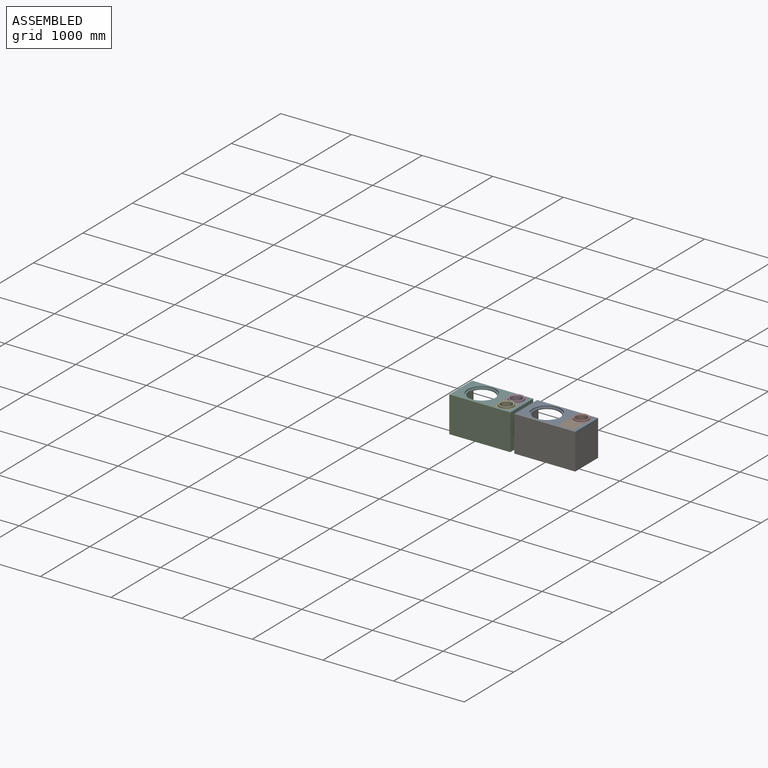
[diagram: assembled view]
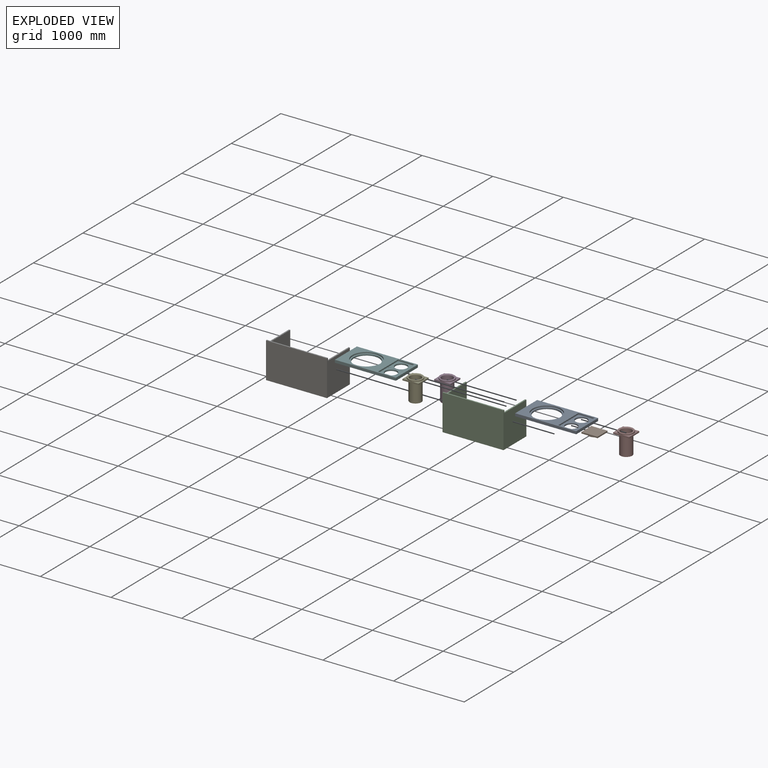
[diagram: exploded view]
GUIDED TOUR — MATED ASSEMBLY (Onshape document ca6fc2cbfa9176d6d9f847e1, AutoMate assembly ca6fc2cbfa9176d6d9f847e1_8db6cc4c12fea4a9a2d24865_8ce9ad16e19f948892ecff8c_default)

This assembly has 8 components, labeled P0..P7 below (a component is one placed occurrence of a part; the same part can appear more than once), held together by 6 mates. A mate is a constraint between two components; its type names the relative motion it leaves free:
  FASTENED — locks the two components together rigidly (no relative motion).
Axis/direction vectors are unit vectors and 'through' points are millimeter coordinates, both in the assembly's world frame.

MATES
  1. FASTENED "Fastened 3": P7 <-> P0, direction (1.000, 0.000, 0.000) through (1313.51, 307.35, 65.31) mm
  2. FASTENED "Fastened 4": P1 <-> P0, direction (-1.000, 0.000, 0.000) through (1313.51, -99.05, 65.31) mm
  3. FASTENED "Fastened 6": P2 <-> P5, direction (1.000, 0.000, 0.000) through (111.64, -114.30, 84.30) mm
  4. FASTENED "Fastened 5": P0 <-> P6, direction (1.000, 0.000, 0.000) through (1034.11, -118.10, 84.36) mm
  5. FASTENED "Fastened 1": P3 <-> P5, direction (1.000, 0.000, 0.000) through (391.04, 311.15, 65.25) mm
  6. FASTENED "Fastened 2": P4 <-> P5, direction (1.000, 0.000, 0.000) through (391.04, -95.25, 65.25) mm

ASSEMBLY ORDER
  1. P0 — the base component [order heuristic]
  2. P7 — core [order heuristic]
  3. P1 [order verified]
  4. P3 — core [order heuristic]
  5. P4 — core [order heuristic]
  6. P6 [order verified]
  7. P2 [order verified]
  8. P5 — core [order heuristic]
(P2, P6 verified with a relaxed clearance tolerance: the source model stores slight part interference there.)
Order-tag legend:
  [order verified] — this step's position reverses a verified removal order: the component was checked to insert without passing through the ones already placed.
  [order heuristic] — the first 5 components form the assembly's core: parts whose collision-free extraction could not be verified, listed in mate-graph order.

Of the 8 components, 3 carry the full construction recipe — the FeatureScript program that regenerates the part's solid from scratch; the rest are supplied as boundary geometry only.
Each toured component is shown spotlighted twice — in the assembled view, then in the exploded view, where a leader line traces a displaced component back to its assembled socket (saturated green if recipe-attached, orange if geometry-only; every other component desaturated gray) — followed by its recipe or geometry summary and the mates that hold it.
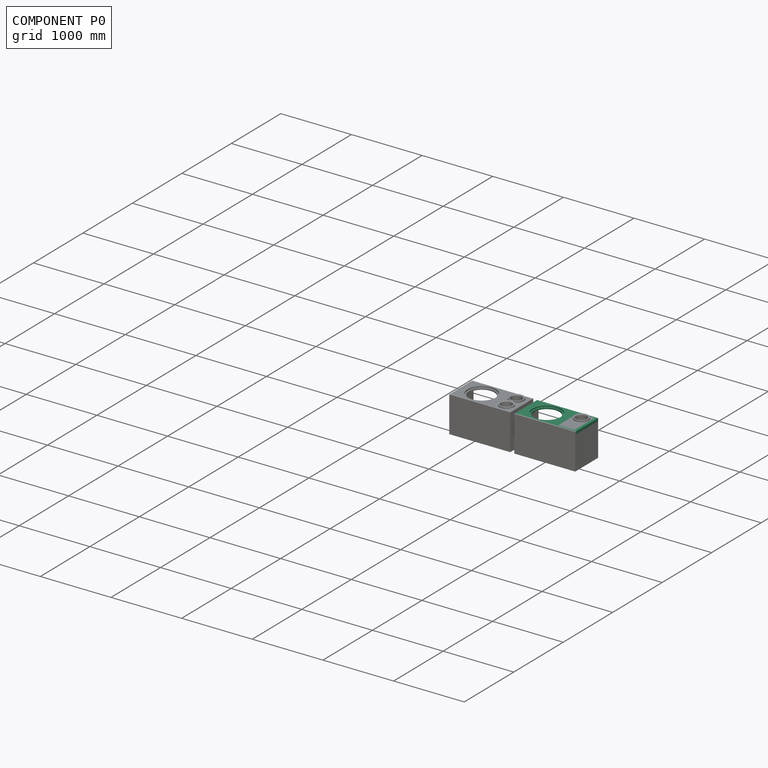
[diagram: component P0 — assembled]
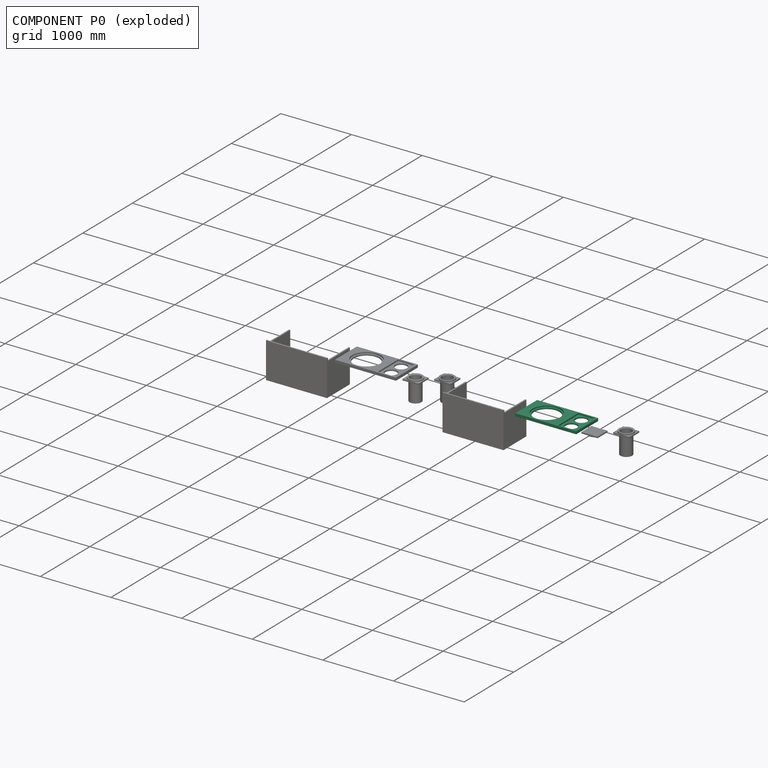
[diagram: component P0 — exploded]
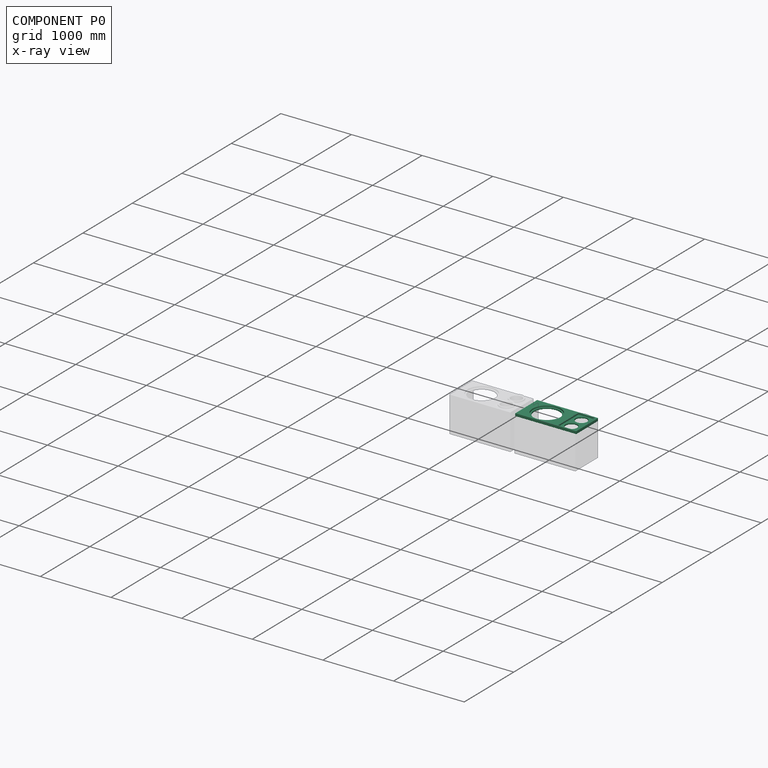
[diagram: component P0 — x-ray view]
COMPONENT P0 — recipe-attached (CADFS 00119937, mesh-verified: the recipe's output STEP matches this component's geometry to below the mesh-comparison resolution (tessellation chordal tolerance ~1.46 mm)).
Held by: FASTENED mate "Fastened 3" to P7; FASTENED mate "Fastened 4" to P1; FASTENED mate "Fastened 5" to P6.
Construction recipe (FeatureScript — the CAD program that rebuilds this solid; sketch coordinates are in the units given by the * unit suffixes, e.g. mm):

FeatureScript 1511;
import(path : "onshape/std/geometry.fs", version : "1511.0");
import(path : "onshape/std/common.fs", version : "1511.0");
const mm = millimeter;
const VERTEX = EntityType.VERTEX;
const EDGE = EntityType.EDGE;
const FACE = EntityType.FACE;
const BODY = EntityType.BODY;
function v(x, y){return vector(x, y);}
function OD(order){return orderDisambiguation(order);}
function OSD(set){return originalSetDisambiguation(set);}
function TD(topology){return topologyDisambiguation(topology);}
function TDD(query){return trueDependencyDisambiguation(query);}
function sQuery(a, b, c) {return sketchEntityQuery(a, b, c);}

annotation { "Feature Type Name" : "Feature", "Feature Type Description" : "" }
export const myFeature = defineFeature(function(context is Context, id is Id, definition is map)
    precondition{}
    {
        {
            var Q0;
            Q0=qCreatedBy(makeId("Top.planeOp"),FACE);
            var sketch = newSketch(context, id + "F0", { "sketchPlane" : qUnion([Q0])});
            skLineSegment(sketch, "E0.bottom", {"start": v(0, 0) * mm, "end": v(863.6, 0) * mm});
            skLineSegment(sketch, "E0.top", {"start": v(0, 444.5) * mm, "end": v(863.6, 444.5) * mm});
            skLineSegment(sketch, "E0.left", {"start": v(0, 0) * mm, "end": v(0, 444.5) * mm});
            skLineSegment(sketch, "E0.right", {"start": v(863.6, 0) * mm, "end": v(863.6, 444.5) * mm});
            skLineSegment(sketch, "E1.bottom", {"start": v(596.9, 19.05) * mm, "end": v(825.5, 19.05) * mm});
            skLineSegment(sketch, "E1.top", {"start": v(596.9, 425.45) * mm, "end": v(825.5, 425.45) * mm});
            skLineSegment(sketch, "E1.left", {"start": v(596.9, 19.05) * mm, "end": v(596.9, 425.45) * mm});
            skLineSegment(sketch, "E1.right", {"start": v(825.5, 19.05) * mm, "end": v(825.5, 425.45) * mm});
            skCircle(sketch, "E2", {"center": v(711.2, 323.85) * mm, "radius": 82.55 * mm});
            skCircle(sketch, "E3", {"center": v(711.2, 120.65) * mm, "radius": 82.55 * mm});
            skCircle(sketch, "E4", {"center": v(292.1, 222.25) * mm, "radius": 179.39 * mm});
            skCircle(sketch, "E5", {"center": v(292.1, 222.25) * mm, "radius": 200.03 * mm});
            skCircle(sketch, "E6", {"center": v(609.6, 412.75) * mm, "radius": 3.18 * mm});
            skCircle(sketch, "E7", {"center": v(812.8, 412.75) * mm, "radius": 3.18 * mm});
            skCircle(sketch, "E8", {"center": v(609.6, 234.95) * mm, "radius": 3.18 * mm});
            skCircle(sketch, "E9", {"center": v(609.6, 209.55) * mm, "radius": 3.18 * mm});
            skCircle(sketch, "E10", {"center": v(609.6, 31.75) * mm, "radius": 3.18 * mm});
            skCircle(sketch, "E11", {"center": v(812.8, 31.75) * mm, "radius": 3.18 * mm});
            skCircle(sketch, "E12", {"center": v(812.8, 234.95) * mm, "radius": 3.18 * mm});
            skCircle(sketch, "E13", {"center": v(812.8, 209.55) * mm, "radius": 3.18 * mm});
            skSolve(sketch);
        }
        {
            var Q0;
            Q0=makeQuery(id+"F0.imprint","IMPRINT",FACE,{"disambiguationData":[TD([[makeQuery(id+"F0.imprint","IMPRINT",EDGE,{"derivedFrom":sQuery(id+"F0.wireOp",EDGE,"E0.bottom")}),1.0]])]});
            extrude(context, id + "F1", {"entities" : qUnion([Q0]), "depth" : 38.1 * mm});
        }
        {
            var Q0;
            Q0=makeQuery(id+"F0.imprint","IMPRINT",FACE,{"disambiguationData":[TD([[makeQuery(id+"F0.imprint","IMPRINT",EDGE,{"derivedFrom":sQuery(id+"F0.wireOp",EDGE,"E4")}),-1.0]])]});
            var Q1;
            Q1=makeQuery(id+"F0.imprint","IMPRINT",FACE,{"disambiguationData":[TD([[makeQuery(id+"F0.imprint","IMPRINT",EDGE,{"derivedFrom":sQuery(id+"F0.wireOp",EDGE,"E1.bottom")}),1.0]])]});
            extrude(context, id + "F2", {"entities" : qUnion([Q0, Q1]), "operationType" : NewBodyOperationType.ADD, "depth" : 19.05 * mm});
        }
    });
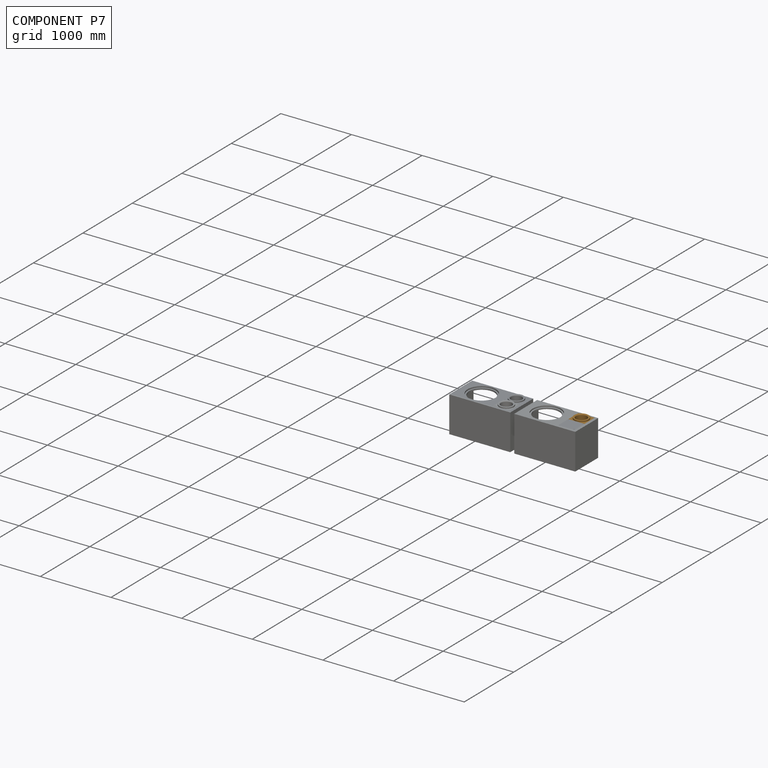
[diagram: component P7 — assembled]
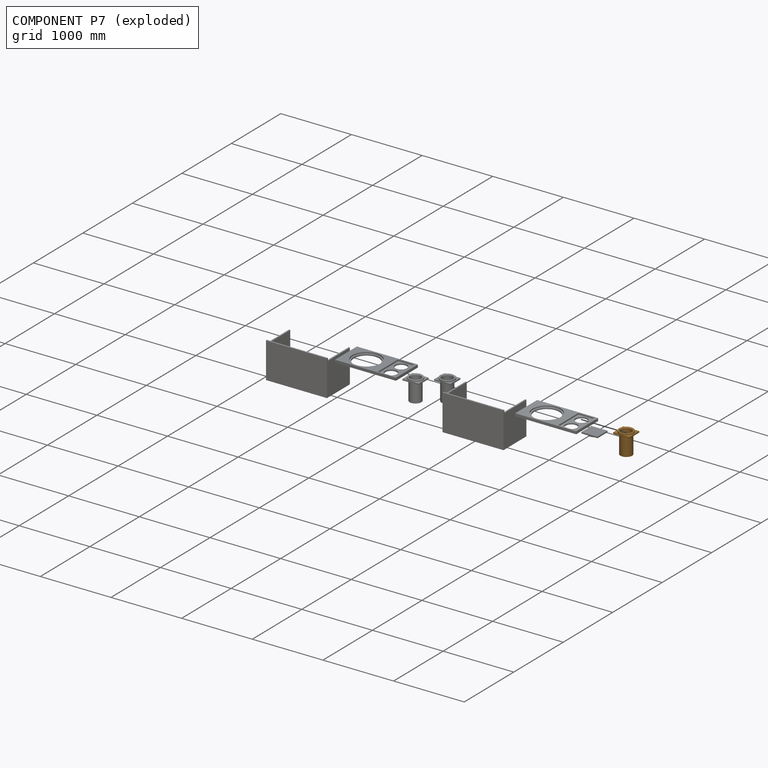
[diagram: component P7 — exploded]
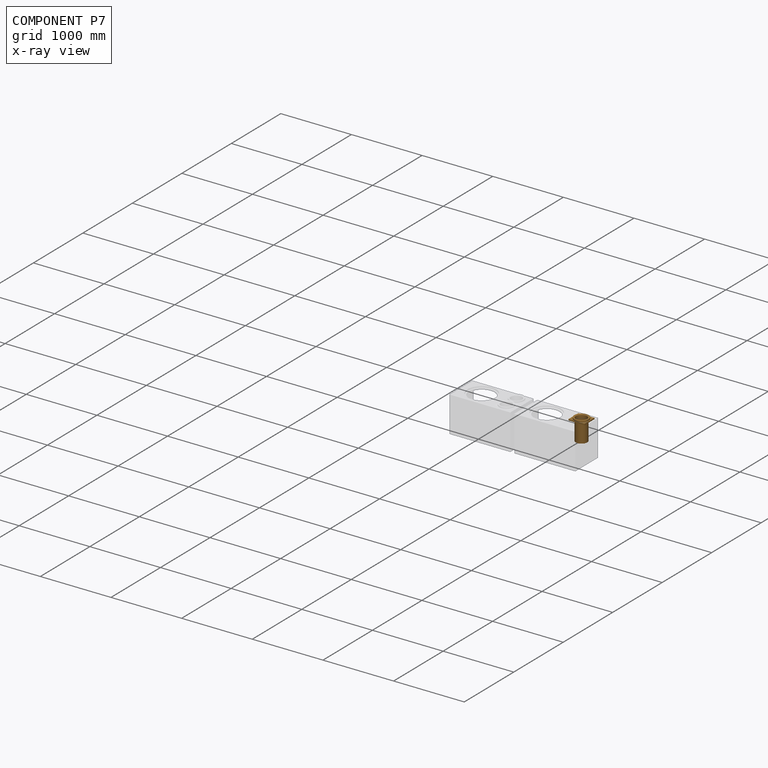
[diagram: component P7 — x-ray view]
COMPONENT P7 — geometry summary (no construction recipe available for this part):
  bounding box: 304.8 x 228.6 x 219.9 mm
  B-rep topology: 1 solid, 18 faces, 82 edges
  volume: 1631324 mm^3 (11% of its bounding box)
  symmetry: 2-fold rotationally symmetric about the z axis; mirror-symmetric across its x mid-plane, y mid-plane
Held by: FASTENED mate "Fastened 3" to P0.
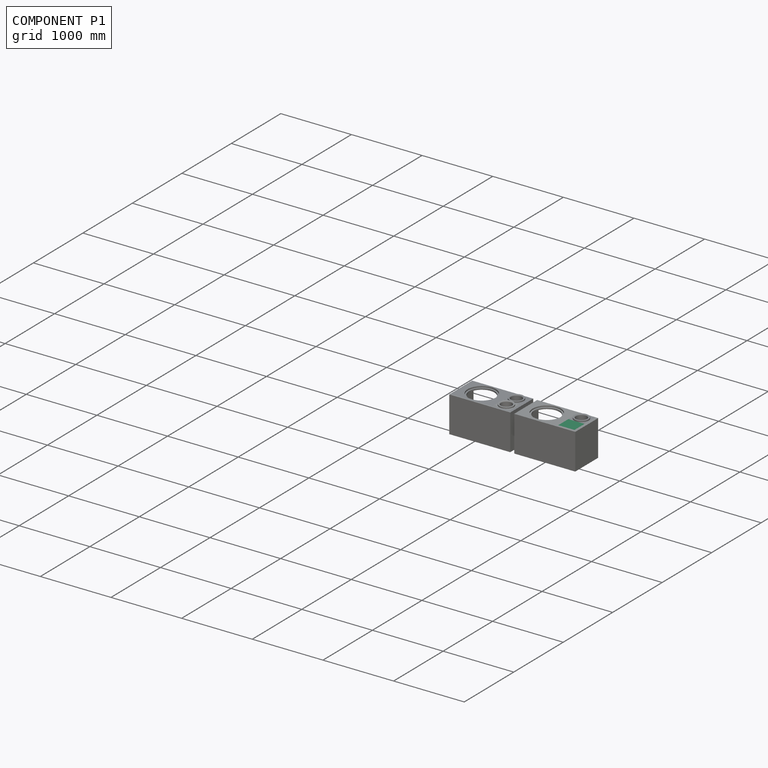
[diagram: component P1 — assembled]
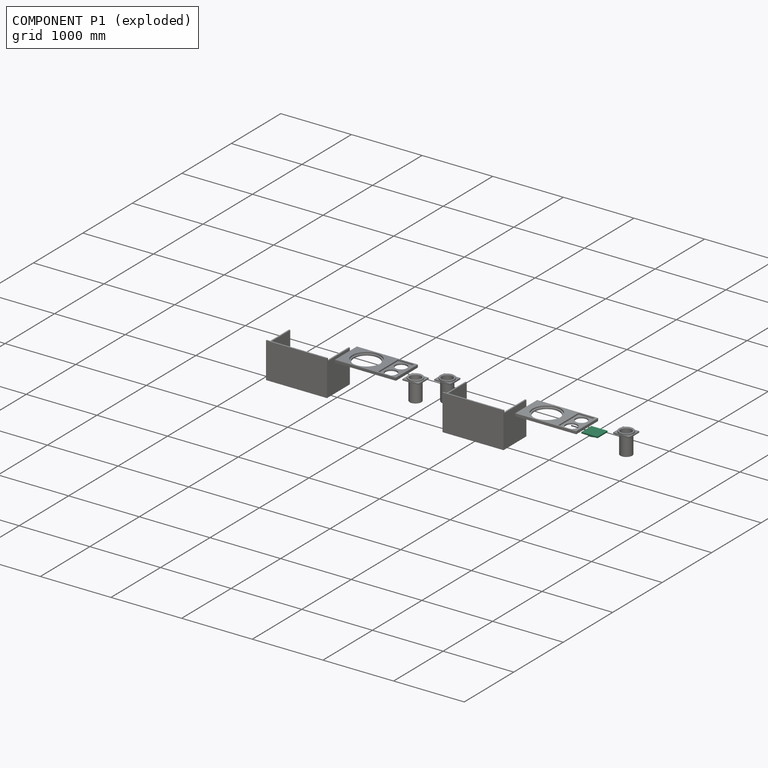
[diagram: component P1 — exploded]
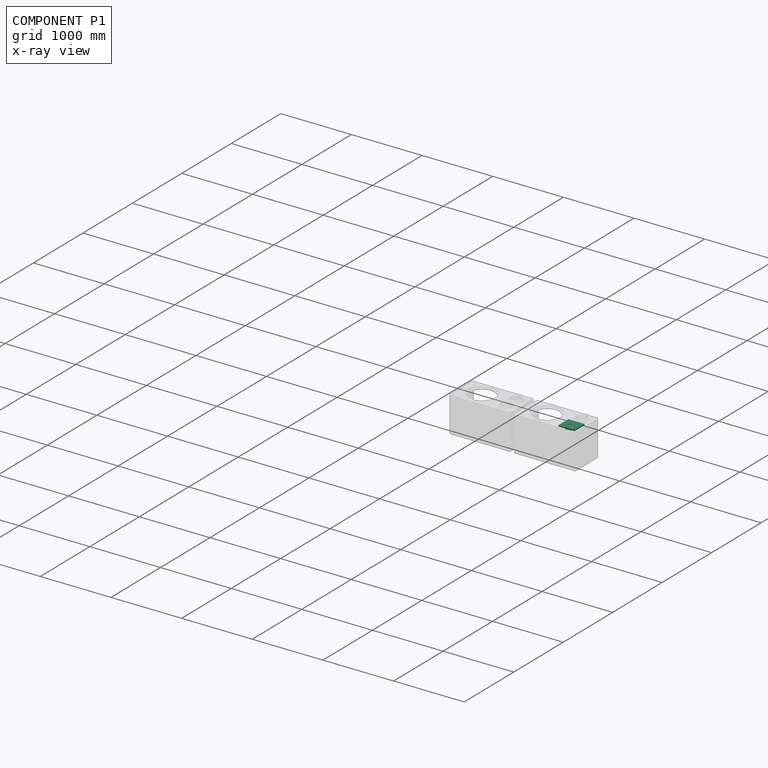
[diagram: component P1 — x-ray view]
COMPONENT P1 — recipe-attached (CADFS 00119939, mesh-verified: the recipe's output STEP matches this component's geometry to below the mesh-comparison resolution (tessellation chordal tolerance ~0.462 mm)).
Held by: FASTENED mate "Fastened 4" to P0.
Construction recipe (FeatureScript — the CAD program that rebuilds this solid; sketch coordinates are in the units given by the * unit suffixes, e.g. mm):

FeatureScript 1511;
import(path : "onshape/std/geometry.fs", version : "1511.0");
import(path : "onshape/std/common.fs", version : "1511.0");
const mm = millimeter;
const VERTEX = EntityType.VERTEX;
const EDGE = EntityType.EDGE;
const FACE = EntityType.FACE;
const BODY = EntityType.BODY;
function v(x, y){return vector(x, y);}
function OD(order){return orderDisambiguation(order);}
function OSD(set){return originalSetDisambiguation(set);}
function TD(topology){return topologyDisambiguation(topology);}
function TDD(query){return trueDependencyDisambiguation(query);}
function sQuery(a, b, c) {return sketchEntityQuery(a, b, c);}

annotation { "Feature Type Name" : "Feature", "Feature Type Description" : "" }
export const myFeature = defineFeature(function(context is Context, id is Id, definition is map)
    precondition{}
    {
        {
            var Q0;
            Q0=qCreatedBy(makeId("Top.planeOp"),FACE);
            var sketch = newSketch(context, id + "F0", { "sketchPlane" : qUnion([Q0])});
            skLineSegment(sketch, "E0.bottom", {"start": v(0, 0) * mm, "end": v(228.6, 0) * mm});
            skLineSegment(sketch, "E0.top", {"start": v(0, 203.2) * mm, "end": v(228.6, 203.2) * mm});
            skLineSegment(sketch, "E0.left", {"start": v(0, 0) * mm, "end": v(0, 203.2) * mm});
            skLineSegment(sketch, "E0.right", {"start": v(228.6, 0) * mm, "end": v(228.6, 203.2) * mm});
            skCircle(sketch, "E1", {"center": v(12.7, 190.5) * mm, "radius": 3.18 * mm});
            skCircle(sketch, "E2", {"center": v(215.9, 190.5) * mm, "radius": 3.18 * mm});
            skCircle(sketch, "E3", {"center": v(12.7, 12.7) * mm, "radius": 3.18 * mm});
            skCircle(sketch, "E4", {"center": v(215.9, 12.7) * mm, "radius": 3.18 * mm});
            skCircle(sketch, "E5", {"center": v(114.3, 101.6) * mm, "radius": 82.55 * mm});
            skSolve(sketch);
        }
        {
            var Q0;
            Q0=makeQuery(id+"F0.imprint","IMPRINT",FACE,{"disambiguationData":[TD([[makeQuery(id+"F0.imprint","IMPRINT",EDGE,{"derivedFrom":sQuery(id+"F0.wireOp",EDGE,"E5")}),1.0]])]});
            extrude(context, id + "F1", {"entities" : qUnion([Q0]), "depth" : 38.1 * mm});
        }
        {
            var Q0;
            Q0=makeQuery(id+"F0.imprint","IMPRINT",FACE,{"disambiguationData":[TD([[makeQuery(id+"F0.imprint","IMPRINT",EDGE,{"derivedFrom":sQuery(id+"F0.wireOp",EDGE,"E0.bottom")}),1.0]])]});
            extrude(context, id + "F2", {"entities" : qUnion([Q0]), "operationType" : NewBodyOperationType.ADD, "depth" : 19.05 * mm});
        }
    });
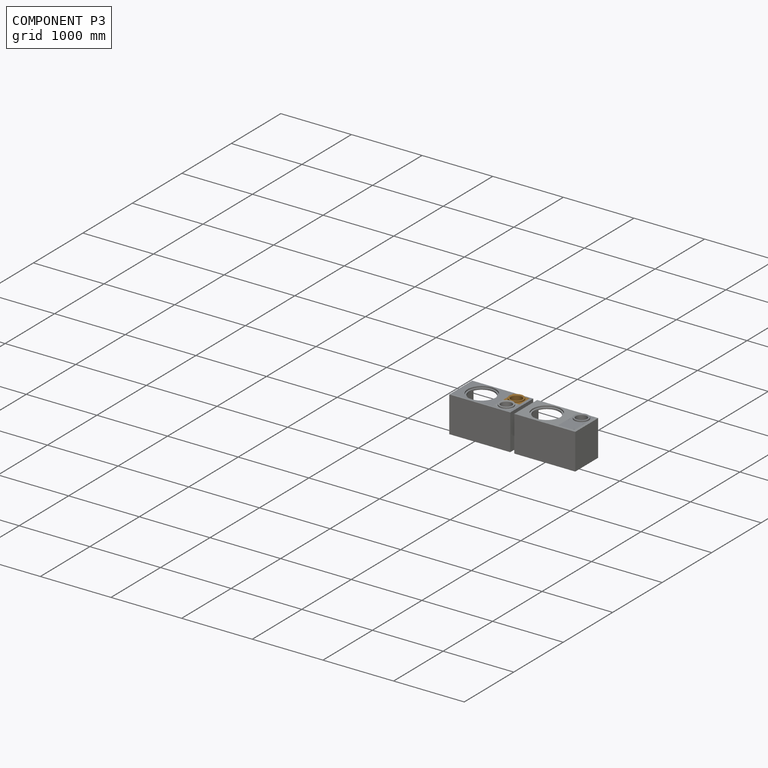
[diagram: component P3 — assembled]
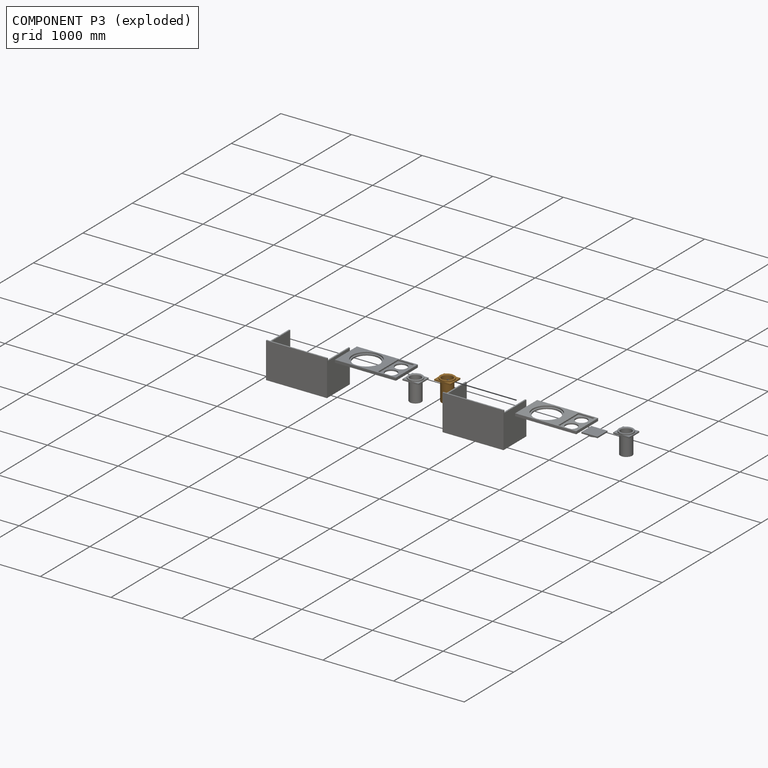
[diagram: component P3 — exploded]
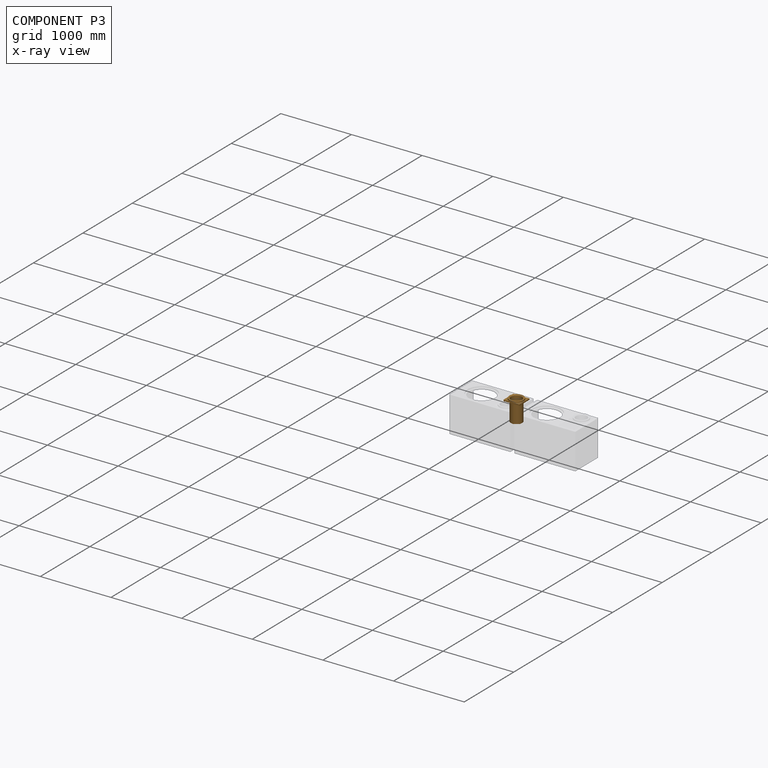
[diagram: component P3 — x-ray view]
COMPONENT P3 — geometry summary (no construction recipe available for this part):
  bounding box: 304.8 x 228.6 x 219.9 mm
  B-rep topology: 1 solid, 18 faces, 82 edges
  volume: 1631324 mm^3 (11% of its bounding box)
  symmetry: 2-fold rotationally symmetric about the z axis; mirror-symmetric across its x mid-plane, y mid-plane
Held by: FASTENED mate "Fastened 1" to P5.
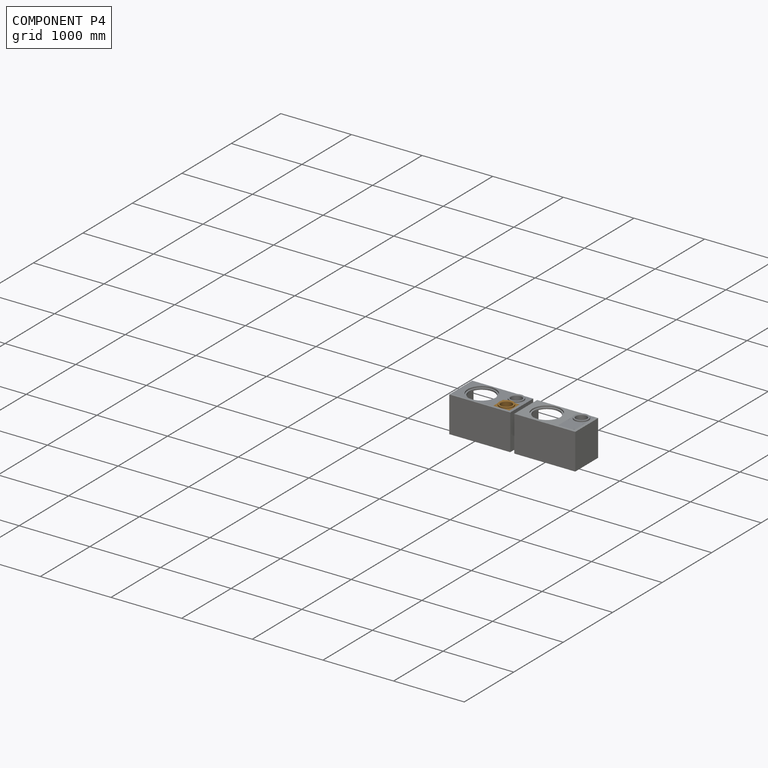
[diagram: component P4 — assembled]
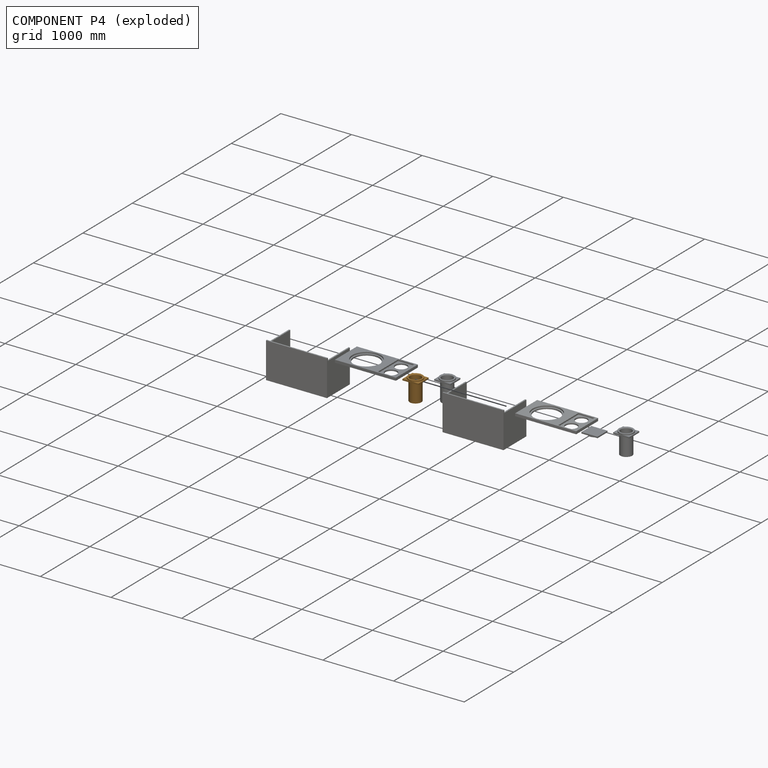
[diagram: component P4 — exploded]
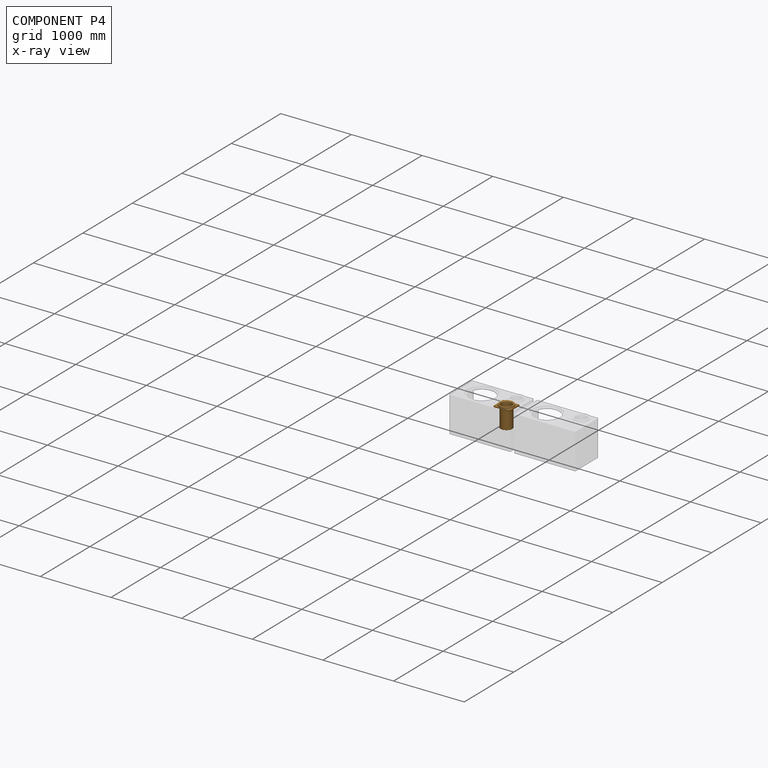
[diagram: component P4 — x-ray view]
COMPONENT P4 — geometry summary (no construction recipe available for this part):
  bounding box: 304.8 x 228.6 x 219.9 mm
  B-rep topology: 1 solid, 18 faces, 82 edges
  volume: 1631324 mm^3 (11% of its bounding box)
  symmetry: 2-fold rotationally symmetric about the z axis; mirror-symmetric across its x mid-plane, y mid-plane
Held by: FASTENED mate "Fastened 2" to P5.
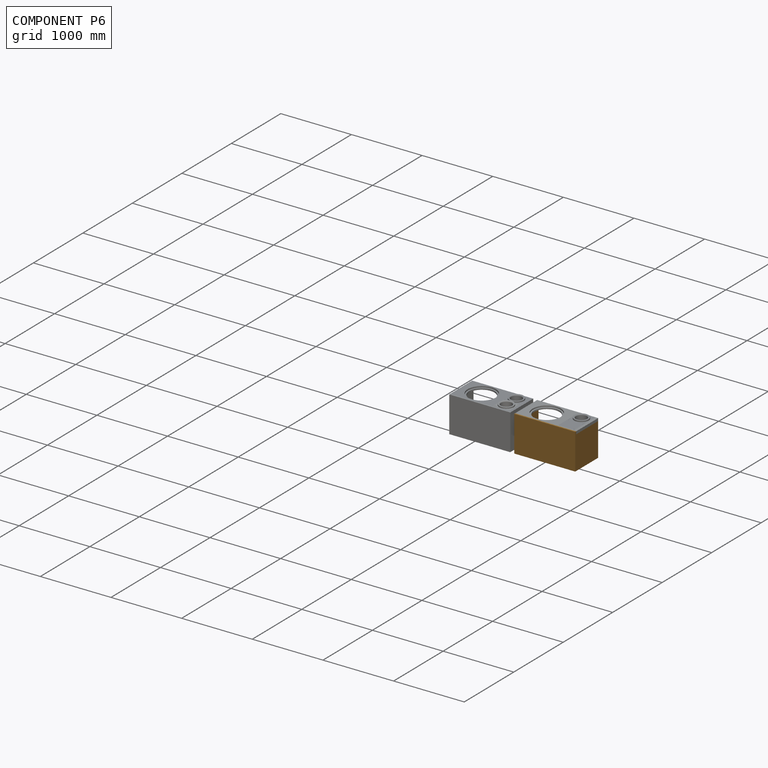
[diagram: component P6 — assembled]
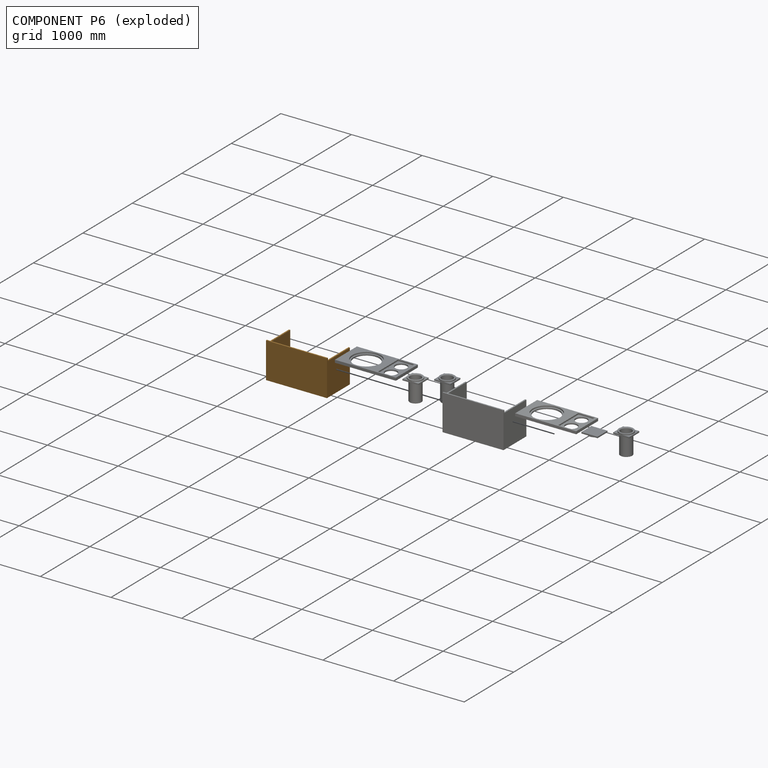
[diagram: component P6 — exploded]
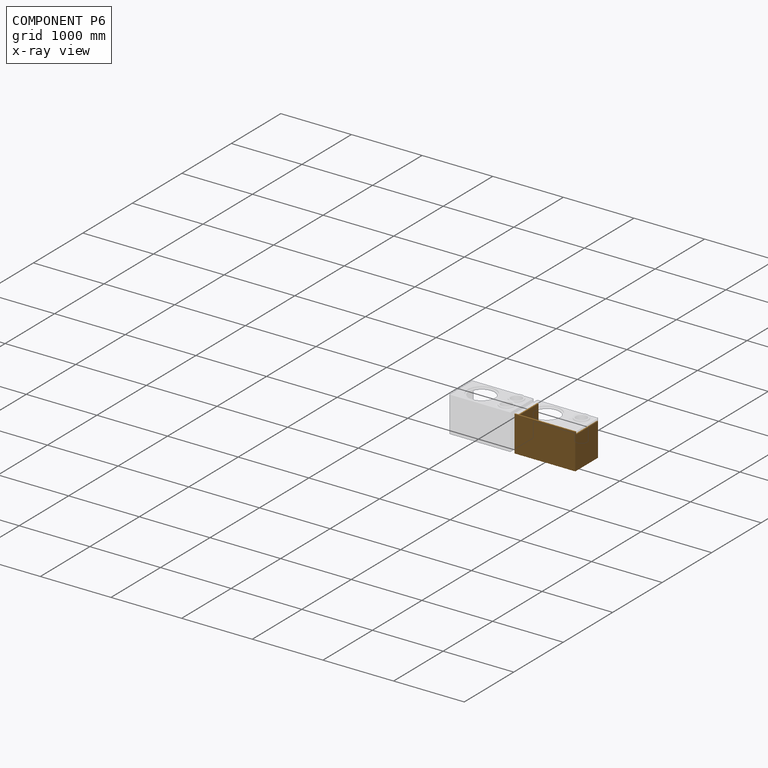
[diagram: component P6 — x-ray view]
COMPONENT P6 — geometry summary (no construction recipe available for this part):
  bounding box: 863.6 x 508.0 x 463.6 mm
  B-rep topology: 1 solid, 12 faces, 60 edges
  volume: 23305478 mm^3 (11% of its bounding box)
  symmetry: mirror-symmetric across its x mid-plane
Held by: FASTENED mate "Fastened 5" to P0.
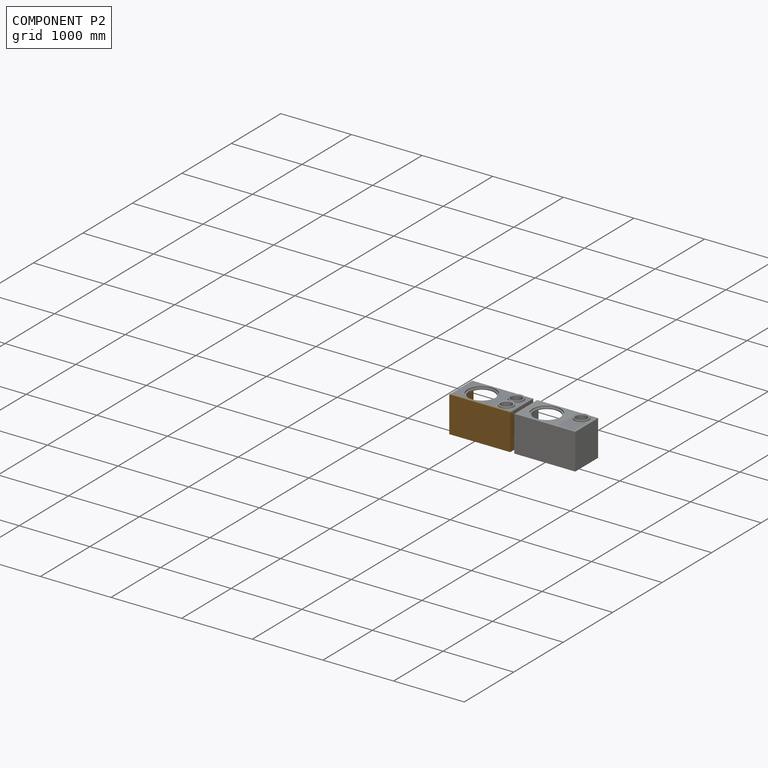
[diagram: component P2 — assembled]
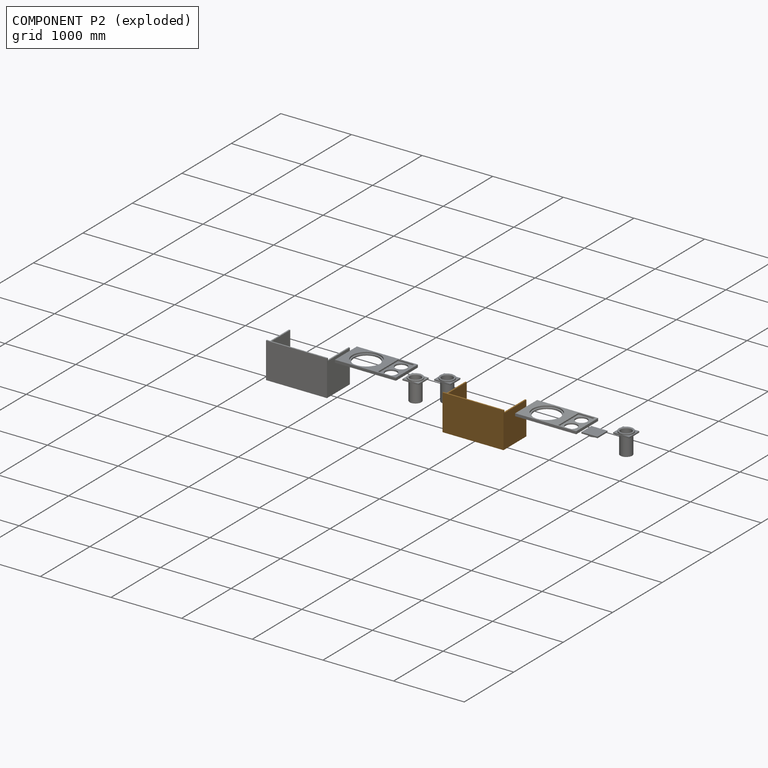
[diagram: component P2 — exploded]
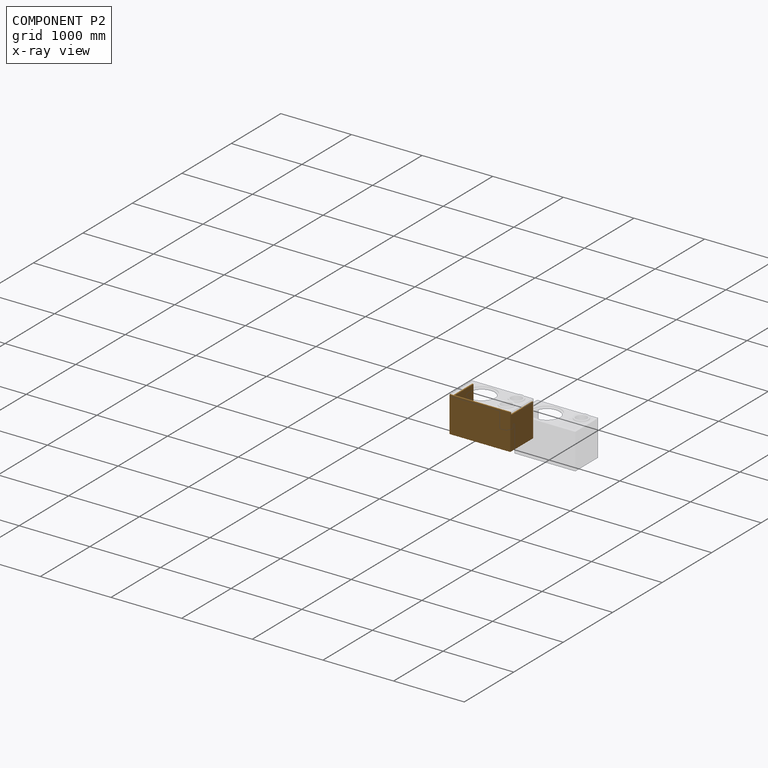
[diagram: component P2 — x-ray view]
COMPONENT P2 — geometry summary (no construction recipe available for this part):
  bounding box: 863.6 x 508.0 x 463.6 mm
  B-rep topology: 1 solid, 12 faces, 60 edges
  volume: 23305478 mm^3 (11% of its bounding box)
  symmetry: mirror-symmetric across its x mid-plane
Held by: FASTENED mate "Fastened 6" to P5.
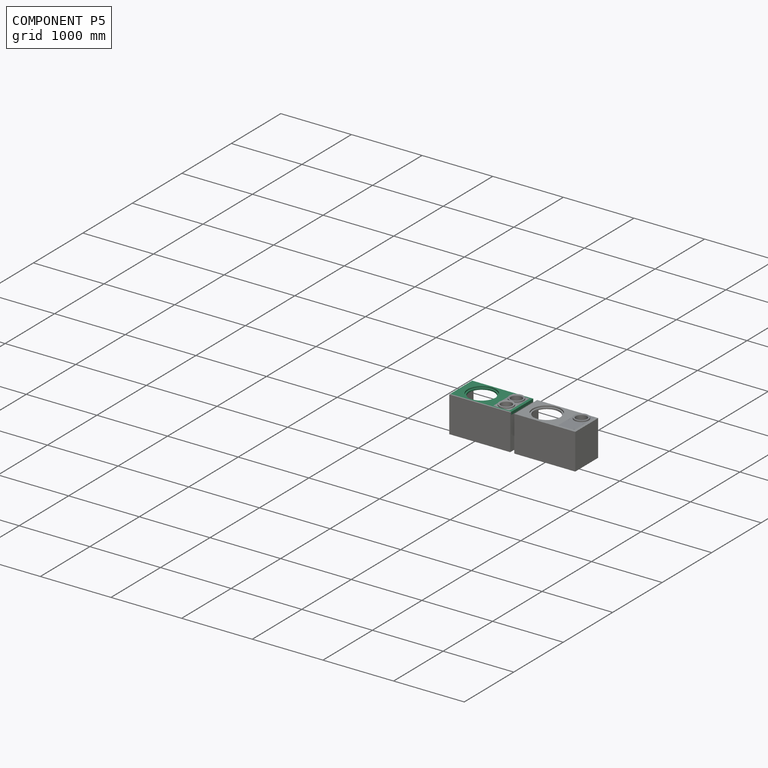
[diagram: component P5 — assembled]
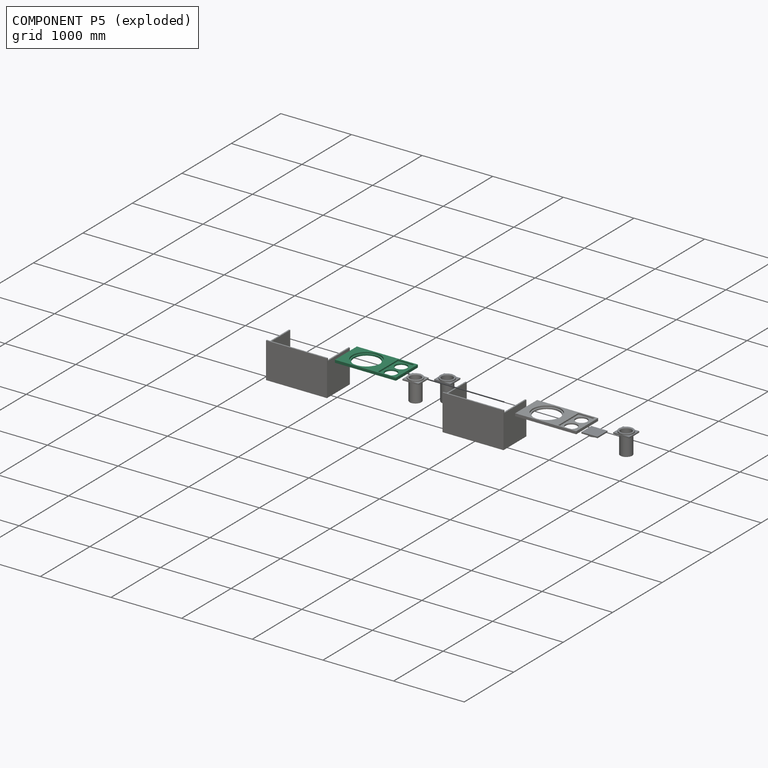
[diagram: component P5 — exploded]
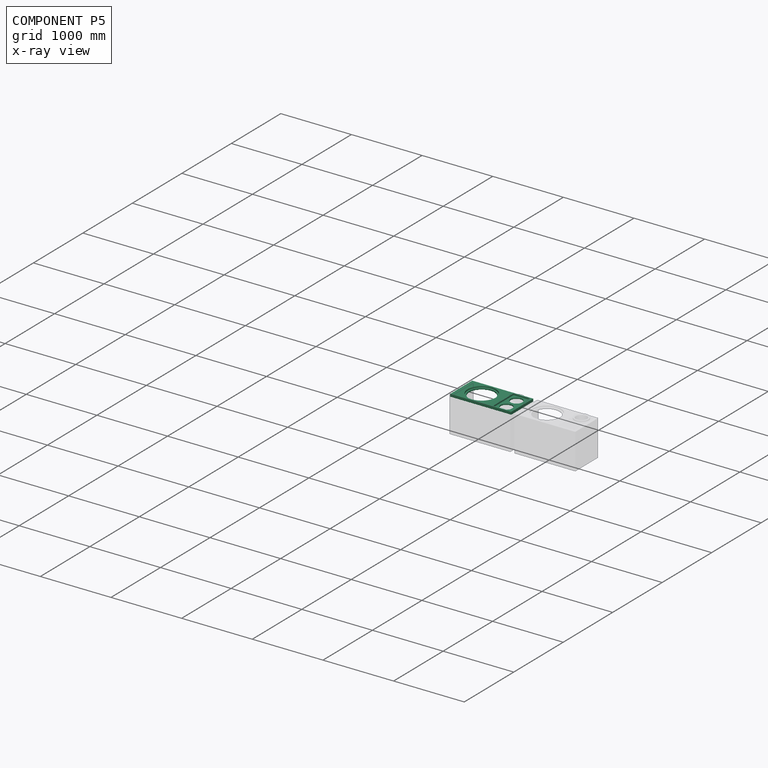
[diagram: component P5 — x-ray view]
COMPONENT P5 — same part as P0 (CADFS 00119937); its construction recipe is shown at P0.
Held by: FASTENED mate "Fastened 6" to P2; FASTENED mate "Fastened 1" to P3; FASTENED mate "Fastened 2" to P4.
PROVENANCE & LICENSES
Assembly (occurrences, transforms, mates, per-part STEP geometry): AutoMate dataset, Zenodo record 7776208, CC0.
Construction recipes: CADFS (HuggingFace VladPyatov/CADFS, CC-BY-4.0, layered over the ABC dataset), FeatureScript reconstruction programs keyed by ABC model id.
Join: ABC meta listings map ABC model id -> Onshape documentId; within a shared document, parts are matched by geometric signature (bounding-box dims + volume at 0.1% relative tolerance, exact B-rep face/solid counts).
Verification: 3 of this assembly's 8 components carry a recipe attachment, and every attachment is mesh-verified: the CADFS STEP and the AutoMate member STEP were compared as meshes in their shared local frame (symmetric sampled-point-to-mesh distance); worst across the 3 attachments: below the mesh-comparison resolution (tessellation chordal tolerance ~1.46 mm) on a 972 mm part.
Renders: orthographic iso camera (az 35 / el 25); the floor grid conveys scale (grid pitch printed in each image; no ruler). In the exploded view each component is displaced by its stored offset vector: the offsets alone carry the explosion direction (mate normal/axis signs are not orientation cues and do not encode it), and separation distances are assigned per mate-chain, not proportionally to assembly-order depth.
